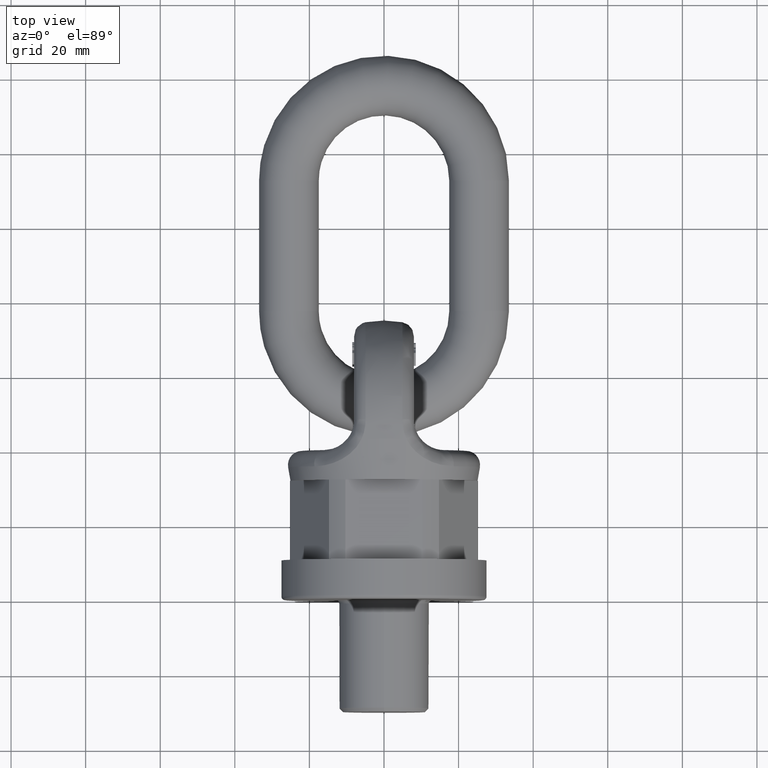
[diagram: clean part render]
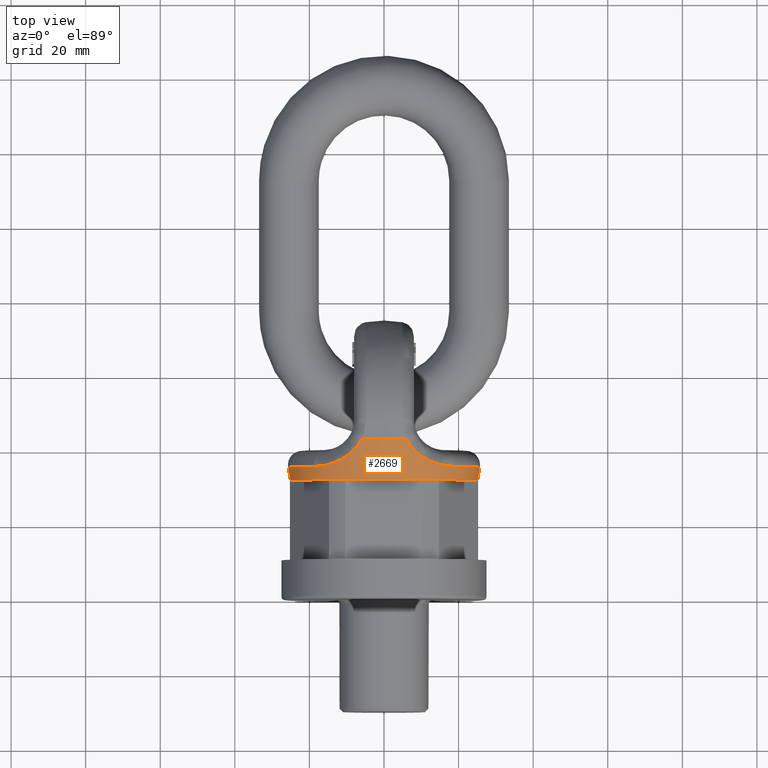
[diagram: same view with one face highlighted and labeled with its STEP entity id]
A machine part, top view. The second image highlights one B-rep face of the part: STEP entity #2669.
In plain terms, the highlighted conical surface has half-angle 9.798 deg.
Its self-contained STEP definition (entity closure, byte-faithful):
#357=B_SPLINE_CURVE_WITH_KNOTS('',3,(#7016,#7017,#7018,#7019,#7020,#7021),
 .UNSPECIFIED.,.F.,.F.,(4,2,4),(0.,0.5,1.),.UNSPECIFIED.);
#358=B_SPLINE_CURVE_WITH_KNOTS('',3,(#7026,#7027,#7028,#7029,#7030,#7031),
 .UNSPECIFIED.,.F.,.F.,(4,2,4),(0.,0.5,1.),.UNSPECIFIED.);
#359=B_SPLINE_CURVE_WITH_KNOTS('',3,(#7035,#7036,#7037,#7038,#7039,#7040),
 .UNSPECIFIED.,.F.,.F.,(4,2,4),(0.,0.5,1.),.UNSPECIFIED.);
#360=B_SPLINE_CURVE_WITH_KNOTS('',3,(#7044,#7045,#7046,#7047,#7048,#7049),
 .UNSPECIFIED.,.F.,.F.,(4,2,4),(0.,0.5,1.),.UNSPECIFIED.);
#1795=CONICAL_SURFACE('',#5657,25.2302067635866,9.79847488617262);
#2669=ADVANCED_FACE('',(#3016,#3017),#1795,.T.);
#3016=FACE_BOUND('',#3104,.T.);
#3017=FACE_BOUND('',#3105,.T.);
#3104=EDGE_LOOP('',(#3521));
#3105=EDGE_LOOP('',(#3522,#3523,#3524,#3525,#3526,#3527,#3528,#3529));
#3521=ORIENTED_EDGE('',*,*,#5066,.F.);
#3522=ORIENTED_EDGE('',*,*,#5067,.T.);
#3523=ORIENTED_EDGE('',*,*,#5068,.T.);
#3524=ORIENTED_EDGE('',*,*,#5069,.T.);
#3525=ORIENTED_EDGE('',*,*,#5070,.T.);
#3526=ORIENTED_EDGE('',*,*,#5071,.T.);
#3527=ORIENTED_EDGE('',*,*,#5072,.T.);
#3528=ORIENTED_EDGE('',*,*,#5073,.T.);
#3529=ORIENTED_EDGE('',*,*,#5074,.T.);
#4653=VERTEX_POINT('',#7015);
#4654=VERTEX_POINT('',#7022);
#4655=VERTEX_POINT('',#7023);
#4656=VERTEX_POINT('',#7025);
#4657=VERTEX_POINT('',#7032);
#4658=VERTEX_POINT('',#7034);
#4659=VERTEX_POINT('',#7041);
#4660=VERTEX_POINT('',#7043);
#4661=VERTEX_POINT('',#7050);
#5066=EDGE_CURVE('',#4653,#4653,#5561,.T.);
#5067=EDGE_CURVE('',#4654,#4655,#357,.T.);
#5068=EDGE_CURVE('',#4655,#4656,#5562,.T.);
#5069=EDGE_CURVE('',#4656,#4657,#358,.T.);
#5070=EDGE_CURVE('',#4657,#4658,#5563,.T.);
#5071=EDGE_CURVE('',#4658,#4659,#359,.T.);
#5072=EDGE_CURVE('',#4659,#4660,#5564,.T.);
#5073=EDGE_CURVE('',#4660,#4661,#360,.T.);
#5074=EDGE_CURVE('',#4661,#4654,#5565,.T.);
#5561=CIRCLE('',#5652,25.2302067635866);
#5562=CIRCLE('',#5653,27.0988417924046);
#5563=CIRCLE('',#5654,25.8539761439334);
#5564=CIRCLE('',#5655,27.0988417924046);
#5565=CIRCLE('',#5656,25.8539761439334);
#5652=AXIS2_PLACEMENT_3D('',#7014,#5967,#5968);
#5653=AXIS2_PLACEMENT_3D('',#7024,#5969,#5970);
#5654=AXIS2_PLACEMENT_3D('',#7033,#5971,#5972);
#5655=AXIS2_PLACEMENT_3D('',#7042,#5973,#5974);
#5656=AXIS2_PLACEMENT_3D('',#7051,#5975,#5976);
#5657=AXIS2_PLACEMENT_3D('',#7052,#5977,#5978);
#5967=DIRECTION('',(0.,-1.,0.));
#5968=DIRECTION('',(0.,0.,-1.));
#5969=DIRECTION('',(0.,-1.,0.));
#5970=DIRECTION('',(0.,0.,-1.));
#5971=DIRECTION('',(0.,-1.,0.));
#5972=DIRECTION('',(0.,0.,-1.));
#5973=DIRECTION('',(0.,-1.,0.));
#5974=DIRECTION('',(0.,0.,-1.));
#5975=DIRECTION('',(0.,-1.,0.));
#5976=DIRECTION('',(-2.34291072916505E-15,0.,1.));
#5977=DIRECTION('',(0.,1.,0.));
#5978=DIRECTION('',(0.,1.40227276169296E-16,1.));
#7014=CARTESIAN_POINT('',(0.,32.,0.));
#7015=CARTESIAN_POINT('',(0.,32.,-25.2302067635866));
#7016=CARTESIAN_POINT('',(-18.6682431880993,35.6118127402589,-17.8864411977637));
#7017=CARTESIAN_POINT('',(-16.6026135396763,35.6118127402589,-20.042357860388));
#7018=CARTESIAN_POINT('',(-14.2048556774492,36.0096549577191,-21.8579209643514));
#7019=CARTESIAN_POINT('',(-9.48351672167395,38.312230282026,-24.7059617112635));
#7020=CARTESIAN_POINT('',(-7.25945024028701,40.2128643500386,-25.6797626126411));
#7021=CARTESIAN_POINT('',(-5.97855748545767,42.8199600952317,-26.4311194784265));
#7022=CARTESIAN_POINT('',(-18.6682431880993,35.6118127402589,-17.8864411977637));
#7023=CARTESIAN_POINT('',(-5.97855748545769,42.8199600952318,-26.4311194784265));
#7024=CARTESIAN_POINT('',(0.,42.8199600952318,0.));
#7025=CARTESIAN_POINT('',(5.97855748545775,42.8199600952318,-26.4311194784264));
#7026=CARTESIAN_POINT('',(5.97855748545775,42.8199600952318,-26.4311194784264));
#7027=CARTESIAN_POINT('',(7.26219213318998,40.2072835726519,-25.6781542499971));
#7028=CARTESIAN_POINT('',(9.52469696534101,38.2870663902746,-24.6832729160973));
#7029=CARTESIAN_POINT('',(14.2098259360332,36.0123617819212,-21.8527492213664));
#7030=CARTESIAN_POINT('',(16.601323886494,35.6118127402589,-20.0437038832759));
#7031=CARTESIAN_POINT('',(18.6682431880993,35.6118127402589,-17.8864411977637));
#7032=CARTESIAN_POINT('',(18.6682431880993,35.6118127402589,-17.8864411977637));
#7033=CARTESIAN_POINT('',(0.,35.6118127402589,0.));
#7034=CARTESIAN_POINT('',(18.6682431880993,35.6118127402589,17.8864411977637));
#7035=CARTESIAN_POINT('',(18.6682431880993,35.6118127402589,17.8864411977637));
#7036=CARTESIAN_POINT('',(16.6026135396764,35.6118127402589,20.042357860388));
#7037=CARTESIAN_POINT('',(14.2048556774492,36.0096549577191,21.8579209643514));
#7038=CARTESIAN_POINT('',(9.483516721674,38.312230282026,24.7059617112635));
#7039=CARTESIAN_POINT('',(7.25945024028707,40.2128643500386,25.6797626126411));
#7040=CARTESIAN_POINT('',(5.97855748545773,42.8199600952317,26.4311194784265));
#7041=CARTESIAN_POINT('',(5.97855748545775,42.8199600952318,26.4311194784264));
#7042=CARTESIAN_POINT('',(0.,42.8199600952318,0.));
#7043=CARTESIAN_POINT('',(-5.97855748545781,42.8199600952318,26.4311194784264));
#7044=CARTESIAN_POINT('',(-5.97855748545781,42.8199600952318,26.4311194784264));
#7045=CARTESIAN_POINT('',(-7.26219213319004,40.2072835726519,25.6781542499971));
#7046=CARTESIAN_POINT('',(-9.52469696534108,38.2870663902746,24.6832729160973));
#7047=CARTESIAN_POINT('',(-14.2098259360332,36.0123617819212,21.8527492213663));
#7048=CARTESIAN_POINT('',(-16.6013238864941,35.6118127402589,20.0437038832759));
#7049=CARTESIAN_POINT('',(-18.6682431880994,35.6118127402589,17.8864411977636));
#7050=CARTESIAN_POINT('',(-18.6682431880994,35.6118127402589,17.8864411977636));
#7051=CARTESIAN_POINT('',(0.,35.6118127402589,0.));
#7052=CARTESIAN_POINT('',(0.,32.,0.));